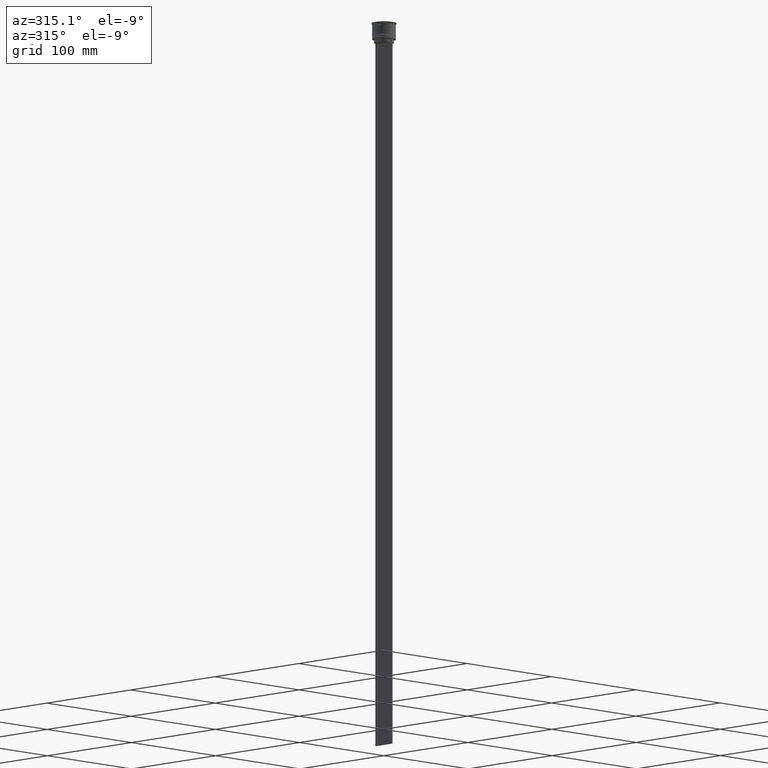
[diagram: clean part render]
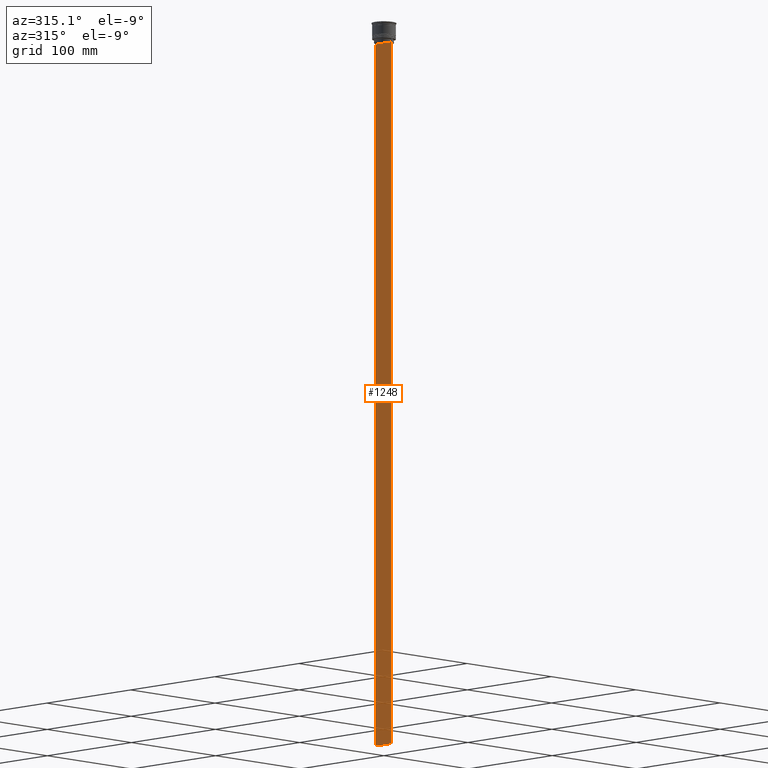
[diagram: same view with one face highlighted and labeled with its STEP entity id]
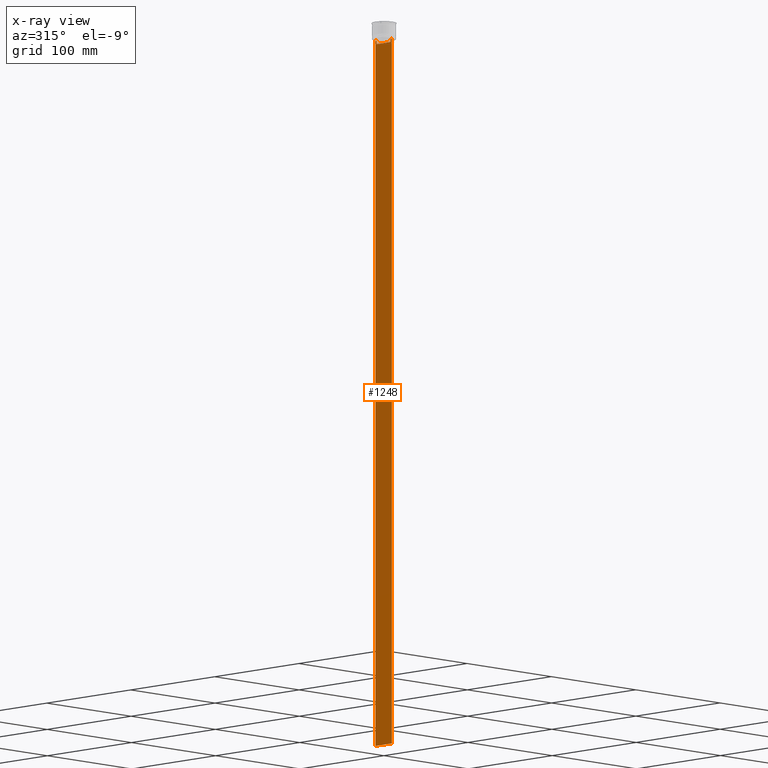
[diagram: x-ray of the same camera — body ghosted, the highlighted face saturated]
A machine part, auxiliary view. The second image highlights one B-rep face of the part: STEP entity #1248.
The next image is the same camera in x-ray: the body ghosted, the highlighted face saturated — about 0% of this face is hidden behind the body in this view.
In plain terms, the highlighted planar face has unit normal (-1, 0, 0).
Its self-contained STEP definition (entity closure, byte-faithful):
#24 = CARTESIAN_POINT ( 'NONE',  ( -0.5000000000000001110, -8.385105843100616241, 0.000000000000000000 ) ) ;
#53 = LINE ( 'NONE', #237, #1669 ) ;
#67 = PLANE ( 'NONE',  #2134 ) ;
#73 = ORIENTED_EDGE ( 'NONE', *, *, #2183, .F. ) ;
#83 = DIRECTION ( 'NONE',  ( -1.000000000000000000, 0.000000000000000000, 0.000000000000000000 ) ) ;
#89 = LINE ( 'NONE', #24, #2341 ) ;
#106 = VERTEX_POINT ( 'NONE', #292 ) ;
#108 = VERTEX_POINT ( 'NONE', #1080 ) ;
#127 = CARTESIAN_POINT ( 'NONE',  ( -0.5000000000000001110, -8.385105843100616241, -14.50000000000000000 ) ) ;
#212 = EDGE_CURVE ( 'NONE', #443, #962, #331, .T. ) ;
#235 = CARTESIAN_POINT ( 'NONE',  ( -0.5000000000000001110, 8.552060201981381837, -14.33334167021640226 ) ) ;
#237 = CARTESIAN_POINT ( 'NONE',  ( -0.5000000000000001110, 8.385105843100616241, 0.000000000000000000 ) ) ;
#255 = CARTESIAN_POINT ( 'NONE',  ( -0.5000000000000001110, 8.400000000000003908, -17.00000000000000000 ) ) ;
#292 = CARTESIAN_POINT ( 'NONE',  ( -0.5000000000000001110, 8.385105843100616241, -14.50000000000000000 ) ) ;
#322 = CARTESIAN_POINT ( 'NONE',  ( -0.5000000000000001110, -8.385105843100616241, -14.50000000000000000 ) ) ;
#331 = LINE ( 'NONE', #2103, #1370 ) ;
#336 = DIRECTION ( 'NONE',  ( 0.000000000000000000, 1.000000000000000000, 0.000000000000000000 ) ) ;
#347 = VERTEX_POINT ( 'NONE', #380 ) ;
#357 = VERTEX_POINT ( 'NONE', #1406 ) ;
#375 = ORIENTED_EDGE ( 'NONE', *, *, #1045, .F. ) ;
#380 = CARTESIAN_POINT ( 'NONE',  ( -0.5000000000000001110, -9.749999999999998224, -14.00000000000000178 ) ) ;
#443 = VERTEX_POINT ( 'NONE', #1239 ) ;
#474 = VERTEX_POINT ( 'NONE', #1658 ) ;
#505 = VERTEX_POINT ( 'NONE', #2283 ) ;
#592 = EDGE_CURVE ( 'NONE', #108, #347, #1548, .T. ) ;
#648 = DIRECTION ( 'NONE',  ( 0.000000000000000000, 0.000000000000000000, 1.000000000000000000 ) ) ;
#687 = FACE_OUTER_BOUND ( 'NONE', #1412, .T. ) ;
#697 = LINE ( 'NONE', #1323, #1389 ) ;
#705 = CARTESIAN_POINT ( 'NONE',  ( -0.5000000000000001110, -8.385105843100616241, -17.00000000000000000 ) ) ;
#721 = CARTESIAN_POINT ( 'NONE',  ( -0.5000000000000001110, -8.552060194457773434, -14.33334167772667023 ) ) ;
#739 = CARTESIAN_POINT ( 'NONE',  ( -0.5000000000000001110, -9.749999999999998224, -14.00000000000000178 ) ) ;
#760 = CARTESIAN_POINT ( 'NONE',  ( -0.5000000000000001110, -9.749999999999998224, -614.0000000000000000 ) ) ;
#835 = ORIENTED_EDGE ( 'NONE', *, *, #1350, .F. ) ;
#934 = EDGE_CURVE ( 'NONE', #1888, #971, #89, .T. ) ;
#962 = VERTEX_POINT ( 'NONE', #1955 ) ;
#971 = VERTEX_POINT ( 'NONE', #322 ) ;
#998 = ORIENTED_EDGE ( 'NONE', *, *, #934, .F. ) ;
#1021 = CARTESIAN_POINT ( 'NONE',  ( -0.5000000000000001110, 8.385105843100616241, -14.50000000000000000 ) ) ;
#1045 = EDGE_CURVE ( 'NONE', #474, #962, #1765, .T. ) ;
#1080 = CARTESIAN_POINT ( 'NONE',  ( -0.5000000000000001110, -8.885943956609230199, -14.00000000000000178 ) ) ;
#1093 = CARTESIAN_POINT ( 'NONE',  ( -0.5000000000000001110, -9.749999999999998224, 5.525624189766635830 ) ) ;
#1141 = ORIENTED_EDGE ( 'NONE', *, *, #212, .T. ) ;
#1143 = CARTESIAN_POINT ( 'NONE',  ( -0.5000000000000001110, -9.749999999999998224, -14.00000000000000178 ) ) ;
#1239 = CARTESIAN_POINT ( 'NONE',  ( -0.5000000000000001110, 9.749999999999998224, -14.00000000000000178 ) ) ;
#1248 = ADVANCED_FACE ( 'NONE', ( #687 ), #67, .T. ) ;
#1323 = CARTESIAN_POINT ( 'NONE',  ( -0.5000000000000001110, -9.749999999999998224, 5.525624189766635830 ) ) ;
#1350 = EDGE_CURVE ( 'NONE', #505, #1888, #1488, .T. ) ;
#1351 = DIRECTION ( 'NONE',  ( 0.000000000000000000, 0.000000000000000000, -1.000000000000000000 ) ) ;
#1370 = VECTOR ( 'NONE', #1517, 1000.000000000000000 ) ;
#1389 = VECTOR ( 'NONE', #1351, 1000.000000000000000 ) ;
#1406 = CARTESIAN_POINT ( 'NONE',  ( -0.5000000000000001110, 8.885943956609230199, -14.00000000000000178 ) ) ;
#1412 = EDGE_LOOP ( 'NONE', ( #73, #2362, #1141, #375, #2158, #1417, #1932, #998, #835, #1992 ) ) ;
#1417 = ORIENTED_EDGE ( 'NONE', *, *, #592, .F. ) ;
#1433 = CARTESIAN_POINT ( 'NONE',  ( -0.5000000000000001110, 8.885943956609230199, -14.00000000000000178 ) ) ;
#1448 = EDGE_CURVE ( 'NONE', #971, #108, #2202, .T. ) ;
#1488 = LINE ( 'NONE', #255, #2174 ) ;
#1517 = DIRECTION ( 'NONE',  ( 0.000000000000000000, 0.000000000000000000, -1.000000000000000000 ) ) ;
#1548 = LINE ( 'NONE', #739, #1829 ) ;
#1658 = CARTESIAN_POINT ( 'NONE',  ( -0.5000000000000001110, -9.749999999999998224, -614.0000000000000000 ) ) ;
#1669 = VECTOR ( 'NONE', #2245, 1000.000000000000000 ) ;
#1678 = EDGE_CURVE ( 'NONE', #106, #505, #53, .T. ) ;
#1681 = DIRECTION ( 'NONE',  ( -0.000000000000000000, -0.000000000000000000, 1.000000000000000000 ) ) ;
#1724 = CARTESIAN_POINT ( 'NONE',  ( -0.5000000000000001110, -8.719005764482790966, -14.16667454151159689 ) ) ;
#1765 = LINE ( 'NONE', #760, #2376 ) ;
#1829 = VECTOR ( 'NONE', #1938, 1000.000000000000000 ) ;
#1848 = DIRECTION ( 'NONE',  ( 0.000000000000000000, -1.000000000000000000, 0.000000000000000000 ) ) ;
#1888 = VERTEX_POINT ( 'NONE', #705 ) ;
#1932 = ORIENTED_EDGE ( 'NONE', *, *, #1448, .F. ) ;
#1938 = DIRECTION ( 'NONE',  ( 0.000000000000000000, -1.000000000000000000, 0.000000000000000000 ) ) ;
#1955 = CARTESIAN_POINT ( 'NONE',  ( -0.5000000000000001110, 9.750000000000001776, -614.0000000000000000 ) ) ;
#1992 = ORIENTED_EDGE ( 'NONE', *, *, #1678, .F. ) ;
#2053 = VECTOR ( 'NONE', #2121, 1000.000000000000000 ) ;
#2103 = CARTESIAN_POINT ( 'NONE',  ( -0.5000000000000001110, 9.750000000000001776, 5.525624189766635830 ) ) ;
#2121 = DIRECTION ( 'NONE',  ( 0.000000000000000000, -1.000000000000000000, 0.000000000000000000 ) ) ;
#2134 = AXIS2_PLACEMENT_3D ( 'NONE', #1093, #83, #648 ) ;
#2146 = LINE ( 'NONE', #1143, #2053 ) ;
#2158 = ORIENTED_EDGE ( 'NONE', *, *, #2292, .F. ) ;
#2174 = VECTOR ( 'NONE', #1848, 1000.000000000000000 ) ;
#2183 = EDGE_CURVE ( 'NONE', #357, #106, #2378, .T. ) ;
#2202 = B_SPLINE_CURVE_WITH_KNOTS ( 'NONE', 3,
 ( #127, #721, #1724, #2317 ),
 .UNSPECIFIED., .F., .F.,
 ( 4, 4 ),
 ( 0.03898465126933130243, 0.03969388910599658260 ),
 .UNSPECIFIED. ) ;
#2232 = CARTESIAN_POINT ( 'NONE',  ( -0.5000000000000001110, 8.719005771582351016, -14.16667453442324742 ) ) ;
#2245 = DIRECTION ( 'NONE',  ( 0.000000000000000000, 0.000000000000000000, -1.000000000000000000 ) ) ;
#2283 = CARTESIAN_POINT ( 'NONE',  ( -0.5000000000000001110, 8.385105843100616241, -17.00000000000000000 ) ) ;
#2292 = EDGE_CURVE ( 'NONE', #347, #474, #697, .T. ) ;
#2293 = EDGE_CURVE ( 'NONE', #443, #357, #2146, .T. ) ;
#2317 = CARTESIAN_POINT ( 'NONE',  ( -0.5000000000000001110, -8.885943956609230199, -14.00000000000000178 ) ) ;
#2341 = VECTOR ( 'NONE', #1681, 1000.000000000000000 ) ;
#2362 = ORIENTED_EDGE ( 'NONE', *, *, #2293, .F. ) ;
#2376 = VECTOR ( 'NONE', #336, 1000.000000000000000 ) ;
#2378 = B_SPLINE_CURVE_WITH_KNOTS ( 'NONE', 3,
 ( #1433, #2232, #235, #1021 ),
 .UNSPECIFIED., .F., .F.,
 ( 4, 4 ),
 ( 0.01511546479386908018, 0.01582316445439079997 ),
 .UNSPECIFIED. ) ;